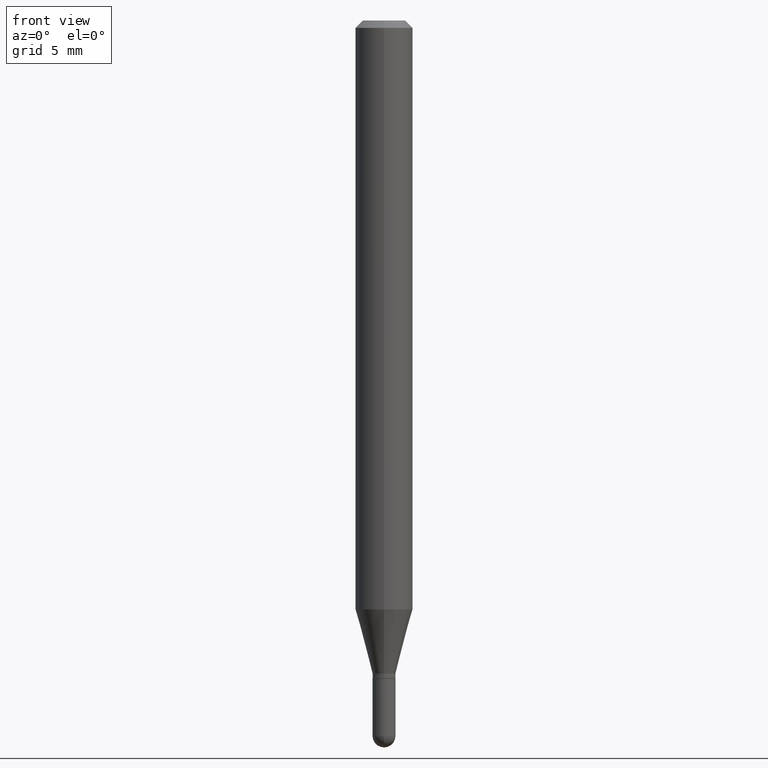
[diagram: clean part render]
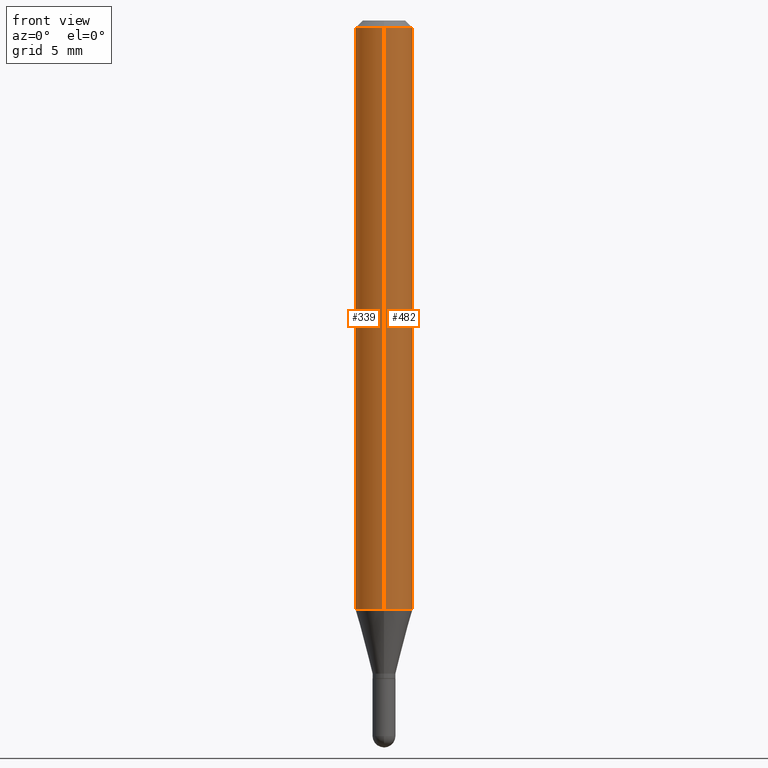
[diagram: same view with one multi-face feature highlighted, each face labeled with its STEP entity id]
A machine part, front view. The highlighted faces form ONE feature: a constant-radius fillet chain: 2 tangent blend faces with common blend radius 1.4999 mm. The faces share edges in the B-rep.
Their STEP definitions:
[1] entity #482 (Cylinder):
#43 = AXIS2_PLACEMENT_3D ( 'NONE', #447, #109, #66 ) ;
#49 = ORIENTED_EDGE ( 'NONE', *, *, #219, .F. ) ;
#60 = VECTOR ( 'NONE', #289, 39.37007874015748143 ) ;
#66 = DIRECTION ( 'NONE',  ( -6.982962677686265922E-15, -1.000000000000000000, 3.491511898180612883E-15 ) ) ;
#73 = DIRECTION ( 'NONE',  ( -2.445447466713837781E-29, 3.491511898180612883E-15, 1.000000000000000000 ) ) ;
#81 = CARTESIAN_POINT ( 'NONE',  ( 4.195754854663390985E-16, 0.05904999999999999832, -2.061737775875651784E-16 ) ) ;
#101 = CARTESIAN_POINT ( 'NONE',  ( 4.195754854663685822E-16, 0.05904999999999574478, -1.211798798871684735 ) ) ;
#103 = AXIS2_PLACEMENT_3D ( 'NONE', #184, #337, #386 ) ;
#109 = DIRECTION ( 'NONE',  ( -2.445447466713837781E-29, 3.491511898180612883E-15, 1.000000000000000000 ) ) ;
#128 = EDGE_CURVE ( 'NONE', #166, #492, #435, .T. ) ;
#139 = ORIENTED_EDGE ( 'NONE', *, *, #128, .T. ) ;
#160 = DIRECTION ( 'NONE',  ( -6.982962677686265922E-15, -1.000000000000000000, 4.626330217890369336E-15 ) ) ;
#166 = VERTEX_POINT ( 'NONE', #316 ) ;
#171 = EDGE_CURVE ( 'NONE', #492, #511, #350, .T. ) ;
#177 = AXIS2_PLACEMENT_3D ( 'NONE', #272, #73, #160 ) ;
#184 = CARTESIAN_POINT ( 'NONE',  ( 3.668171200070762347E-31, -5.237267847270927755E-17, -0.01500000000000002373 ) ) ;
#190 = VERTEX_POINT ( 'NONE', #405 ) ;
#207 = CARTESIAN_POINT ( 'NONE',  ( -4.123439461173739834E-16, -0.05904999999999999832, 2.061737775875651784E-16 ) ) ;
#217 = VECTOR ( 'NONE', #427, 39.37007874015748143 ) ;
#219 = EDGE_CURVE ( 'NONE', #166, #190, #326, .T. ) ;
#261 = CYLINDRICAL_SURFACE ( 'NONE', #43, 0.05904999999999999832 ) ;
#272 = CARTESIAN_POINT ( 'NONE',  ( 2.963390302867632407E-29, -4.231009924461461334E-15, -1.211798798871684513 ) ) ;
#289 = DIRECTION ( 'NONE',  ( -2.445447466713837781E-29, 3.491511898180613277E-15, 1.000000000000000000 ) ) ;
#316 = CARTESIAN_POINT ( 'NONE',  ( -4.123439461173444997E-16, -0.05905000000000425187, -1.211798798871684291 ) ) ;
#326 = LINE ( 'NONE', #207, #60 ) ;
#333 = ORIENTED_EDGE ( 'NONE', *, *, #499, .F. ) ;
#337 = DIRECTION ( 'NONE',  ( -2.445447466713837781E-29, 3.491511898180612883E-15, 1.000000000000000000 ) ) ;
#350 = LINE ( 'NONE', #81, #217 ) ;
#386 = DIRECTION ( 'NONE',  ( -6.982962677686265922E-15, -1.000000000000000000, 3.505890868245046092E-15 ) ) ;
#388 = CIRCLE ( 'NONE', #103, 0.05904999999999999832 ) ;
#405 = CARTESIAN_POINT ( 'NONE',  ( -4.123439461173736383E-16, -0.05905000000000005383, -0.01499999999999981730 ) ) ;
#427 = DIRECTION ( 'NONE',  ( -2.445447466713837781E-29, 3.491511898180613277E-15, 1.000000000000000000 ) ) ;
#435 = CIRCLE ( 'NONE', #177, 0.05904999999999999832 ) ;
#447 = CARTESIAN_POINT ( 'NONE',  ( 0.000000000000000000, 0.000000000000000000, 0.000000000000000000 ) ) ;
#454 = EDGE_LOOP ( 'NONE', ( #139, #456, #333, #49 ) ) ;
#456 = ORIENTED_EDGE ( 'NONE', *, *, #171, .T. ) ;
#461 = CARTESIAN_POINT ( 'NONE',  ( 4.195754854663689766E-16, 0.05904999999999995669, -0.01500000000000023016 ) ) ;
#482 = ADVANCED_FACE ( 'NONE', ( #491 ), #261, .T. ) ;
#491 = FACE_OUTER_BOUND ( 'NONE', #454, .T. ) ;
#492 = VERTEX_POINT ( 'NONE', #101 ) ;
#499 = EDGE_CURVE ( 'NONE', #190, #511, #388, .T. ) ;
#511 = VERTEX_POINT ( 'NONE', #461 ) ;
[2] entity #339 (Cylinder):
#5 = AXIS2_PLACEMENT_3D ( 'NONE', #205, #214, #17 ) ;
#17 = DIRECTION ( 'NONE',  ( -6.982962677686265922E-15, -1.000000000000000000, 3.491511898180612883E-15 ) ) ;
#18 = AXIS2_PLACEMENT_3D ( 'NONE', #391, #240, #395 ) ;
#57 = ORIENTED_EDGE ( 'NONE', *, *, #171, .F. ) ;
#60 = VECTOR ( 'NONE', #289, 39.37007874015748143 ) ;
#68 = EDGE_CURVE ( 'NONE', #511, #190, #387, .T. ) ;
#81 = CARTESIAN_POINT ( 'NONE',  ( 4.195754854663390985E-16, 0.05904999999999999832, -2.061737775875651784E-16 ) ) ;
#97 = FACE_OUTER_BOUND ( 'NONE', #245, .T. ) ;
#101 = CARTESIAN_POINT ( 'NONE',  ( 4.195754854663685822E-16, 0.05904999999999574478, -1.211798798871684735 ) ) ;
#114 = DIRECTION ( 'NONE',  ( -2.445447466713837781E-29, 3.491511898180612883E-15, 1.000000000000000000 ) ) ;
#166 = VERTEX_POINT ( 'NONE', #316 ) ;
#171 = EDGE_CURVE ( 'NONE', #492, #511, #350, .T. ) ;
#174 = EDGE_CURVE ( 'NONE', #492, #166, #425, .T. ) ;
#190 = VERTEX_POINT ( 'NONE', #405 ) ;
#205 = CARTESIAN_POINT ( 'NONE',  ( 0.000000000000000000, 0.000000000000000000, 0.000000000000000000 ) ) ;
#207 = CARTESIAN_POINT ( 'NONE',  ( -4.123439461173739834E-16, -0.05904999999999999832, 2.061737775875651784E-16 ) ) ;
#214 = DIRECTION ( 'NONE',  ( -2.445447466713837781E-29, 3.491511898180612883E-15, 1.000000000000000000 ) ) ;
#217 = VECTOR ( 'NONE', #427, 39.37007874015748143 ) ;
#219 = EDGE_CURVE ( 'NONE', #166, #190, #326, .T. ) ;
#240 = DIRECTION ( 'NONE',  ( -2.445447466713837781E-29, 3.491511898180612883E-15, 1.000000000000000000 ) ) ;
#243 = CARTESIAN_POINT ( 'NONE',  ( 3.668171200070762347E-31, -5.237267847270927755E-17, -0.01500000000000002373 ) ) ;
#245 = EDGE_LOOP ( 'NONE', ( #57, #507, #397, #340 ) ) ;
#258 = CYLINDRICAL_SURFACE ( 'NONE', #5, 0.05904999999999999832 ) ;
#289 = DIRECTION ( 'NONE',  ( -2.445447466713837781E-29, 3.491511898180613277E-15, 1.000000000000000000 ) ) ;
#316 = CARTESIAN_POINT ( 'NONE',  ( -4.123439461173444997E-16, -0.05905000000000425187, -1.211798798871684291 ) ) ;
#326 = LINE ( 'NONE', #207, #60 ) ;
#339 = ADVANCED_FACE ( 'NONE', ( #97 ), #258, .T. ) ;
#340 = ORIENTED_EDGE ( 'NONE', *, *, #68, .F. ) ;
#350 = LINE ( 'NONE', #81, #217 ) ;
#387 = CIRCLE ( 'NONE', #495, 0.05904999999999999832 ) ;
#391 = CARTESIAN_POINT ( 'NONE',  ( 2.963390302867632407E-29, -4.231009924461461334E-15, -1.211798798871684513 ) ) ;
#395 = DIRECTION ( 'NONE',  ( -6.982962677686265922E-15, -1.000000000000000000, 4.626330217890369336E-15 ) ) ;
#397 = ORIENTED_EDGE ( 'NONE', *, *, #219, .T. ) ;
#405 = CARTESIAN_POINT ( 'NONE',  ( -4.123439461173736383E-16, -0.05905000000000005383, -0.01499999999999981730 ) ) ;
#425 = CIRCLE ( 'NONE', #18, 0.05904999999999999832 ) ;
#427 = DIRECTION ( 'NONE',  ( -2.445447466713837781E-29, 3.491511898180613277E-15, 1.000000000000000000 ) ) ;
#461 = CARTESIAN_POINT ( 'NONE',  ( 4.195754854663689766E-16, 0.05904999999999995669, -0.01500000000000023016 ) ) ;
#492 = VERTEX_POINT ( 'NONE', #101 ) ;
#495 = AXIS2_PLACEMENT_3D ( 'NONE', #243, #114, #506 ) ;
#506 = DIRECTION ( 'NONE',  ( -6.982962677686265922E-15, -1.000000000000000000, 3.505890868245046092E-15 ) ) ;
#507 = ORIENTED_EDGE ( 'NONE', *, *, #174, .T. ) ;
#511 = VERTEX_POINT ( 'NONE', #461 ) ;